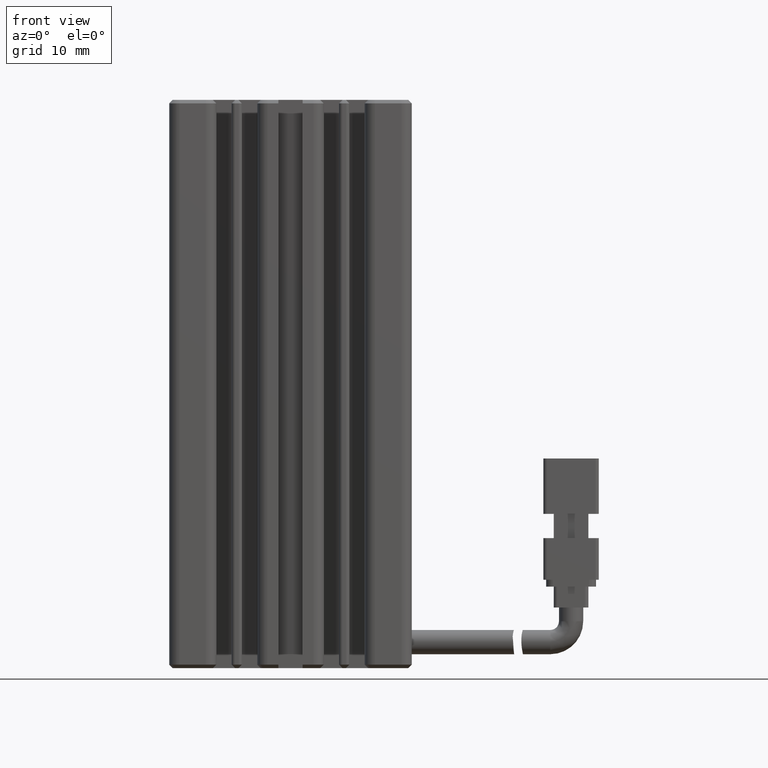
[diagram: clean part render]
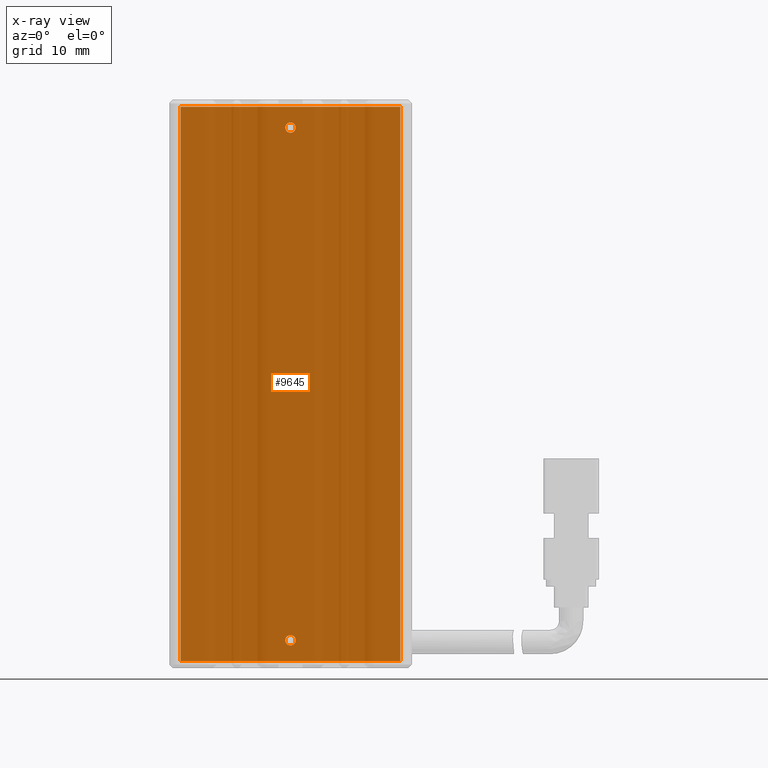
[diagram: x-ray — body ghosted, one internal face saturated and labeled with its STEP entity id]
A machine part, front view, then the same camera in x-ray: the body is ghosted and one INTERNAL B-rep face — a face not visible from any outside direction — is saturated and labeled: STEP entity #9645.
In plain terms, the highlighted planar face has unit normal (0, 1, 0).
Its self-contained STEP definition (entity closure, byte-faithful):
#1 = EDGE_CURVE ( 'NONE', #1266, #15332, #17272, .T. ) ;
#212 = EDGE_CURVE ( 'NONE', #29120, #2598, #29240, .T. ) ;
#1266 = VERTEX_POINT ( 'NONE', #30682 ) ;
#1690 = VECTOR ( 'NONE', #25660, 1000.000000000000000 ) ;
#2510 = DIRECTION ( 'NONE',  ( -0.0000000000000000000, -1.000000000000000000, -0.0000000000000000000 ) ) ;
#2598 = VERTEX_POINT ( 'NONE', #16327 ) ;
#2874 = CARTESIAN_POINT ( 'NONE',  ( 40.92537974683541800, 31.49073232304837300, -151.2500000000000300 ) ) ;
#3547 = DIRECTION ( 'NONE',  ( -0.0000000000000000000, -1.000000000000000000, -0.0000000000000000000 ) ) ;
#3583 = FACE_OUTER_BOUND ( 'NONE', #17815, .T. ) ;
#3622 = ORIENTED_EDGE ( 'NONE', *, *, #23315, .F. ) ;
#3834 = ORIENTED_EDGE ( 'NONE', *, *, #212, .F. ) ;
#4704 = DIRECTION ( 'NONE',  ( 0.0000000000000000000, 0.0000000000000000000, 1.000000000000000000 ) ) ;
#4968 = ORIENTED_EDGE ( 'NONE', *, *, #28646, .F. ) ;
#5438 = FACE_BOUND ( 'NONE', #27898, .T. ) ;
#6550 = VERTEX_POINT ( 'NONE', #19560 ) ;
#6854 = EDGE_CURVE ( 'NONE', #30297, #11134, #30434, .T. ) ;
#7009 = DIRECTION ( 'NONE',  ( -0.0000000000000000000, -1.000000000000000000, -0.0000000000000000000 ) ) ;
#7698 = VECTOR ( 'NONE', #21249, 1000.000000000000000 ) ;
#7795 = VERTEX_POINT ( 'NONE', #26455 ) ;
#8379 = VECTOR ( 'NONE', #30060, 1000.000000000000000 ) ;
#8430 = AXIS2_PLACEMENT_3D ( 'NONE', #15035, #3547, #15162 ) ;
#9621 = CIRCLE ( 'NONE', #28374, 0.7500000000000006700 ) ;
#9645 = ADVANCED_FACE ( 'NONE', ( #3583, #19609, #5438 ), #28736, .F. ) ;
#9880 = CARTESIAN_POINT ( 'NONE',  ( 56.77537974683542600, 31.49073232304837300, -155.0000000000000300 ) ) ;
#11134 = VERTEX_POINT ( 'NONE', #16051 ) ;
#11739 = AXIS2_PLACEMENT_3D ( 'NONE', #36848, #19428, #4704 ) ;
#14711 = ORIENTED_EDGE ( 'NONE', *, *, #37326, .F. ) ;
#15035 = CARTESIAN_POINT ( 'NONE',  ( 40.92537974683541100, 31.49073232304837300, -78.00000000000001400 ) ) ;
#15162 = DIRECTION ( 'NONE',  ( 0.0000000000000000000, 0.0000000000000000000, 1.000000000000000000 ) ) ;
#15332 = VERTEX_POINT ( 'NONE', #23943 ) ;
#15333 = EDGE_CURVE ( 'NONE', #15332, #30297, #18649, .T. ) ;
#15609 = EDGE_CURVE ( 'NONE', #7795, #6550, #28301, .T. ) ;
#15914 = DIRECTION ( 'NONE',  ( 0.0000000000000000000, 0.0000000000000000000, 1.000000000000000000 ) ) ;
#16051 = CARTESIAN_POINT ( 'NONE',  ( 25.07537974683541600, 31.49073232304837300, -155.0000000000000300 ) ) ;
#16057 = AXIS2_PLACEMENT_3D ( 'NONE', #31271, #37167, #23084 ) ;
#16327 = CARTESIAN_POINT ( 'NONE',  ( 40.92537974683541800, 31.49073232304837300, -152.7500000000000300 ) ) ;
#17272 = LINE ( 'NONE', #31933, #28788 ) ;
#17485 = CARTESIAN_POINT ( 'NONE',  ( 40.92537974683541800, 31.49073232304837300, -152.0000000000000300 ) ) ;
#17815 = EDGE_LOOP ( 'NONE', ( #3622, #19519, #20427, #35849 ) ) ;
#18649 = LINE ( 'NONE', #35337, #7698 ) ;
#19428 = DIRECTION ( 'NONE',  ( -0.0000000000000000000, -1.000000000000000000, -0.0000000000000000000 ) ) ;
#19500 = CARTESIAN_POINT ( 'NONE',  ( 25.07537974683540900, 31.49073232304837300, -75.00000000000001400 ) ) ;
#19519 = ORIENTED_EDGE ( 'NONE', *, *, #6854, .F. ) ;
#19560 = CARTESIAN_POINT ( 'NONE',  ( 40.92537974683541100, 31.49073232304837300, -77.25000000000001400 ) ) ;
#19609 = FACE_BOUND ( 'NONE', #21221, .T. ) ;
#20288 = DIRECTION ( 'NONE',  ( 1.000000000000000000, 0.0000000000000000000, 1.387778780781445400E-016 ) ) ;
#20427 = ORIENTED_EDGE ( 'NONE', *, *, #15333, .F. ) ;
#21221 = EDGE_LOOP ( 'NONE', ( #4968, #26768 ) ) ;
#21249 = DIRECTION ( 'NONE',  ( 1.387778780781445400E-016, -0.0000000000000000000, -1.000000000000000000 ) ) ;
#21689 = CARTESIAN_POINT ( 'NONE',  ( 56.77537974683541900, 31.49073232304837300, -155.0000000000000300 ) ) ;
#23084 = DIRECTION ( 'NONE',  ( -1.387778780781445400E-016, 0.0000000000000000000, 1.000000000000000000 ) ) ;
#23315 = EDGE_CURVE ( 'NONE', #11134, #1266, #35607, .T. ) ;
#23943 = CARTESIAN_POINT ( 'NONE',  ( 56.77537974683541200, 31.49073232304837300, -75.00000000000001400 ) ) ;
#25660 = DIRECTION ( 'NONE',  ( -1.387778780781445400E-016, 0.0000000000000000000, 1.000000000000000000 ) ) ;
#26455 = CARTESIAN_POINT ( 'NONE',  ( 40.92537974683541100, 31.49073232304837300, -78.75000000000001400 ) ) ;
#26768 = ORIENTED_EDGE ( 'NONE', *, *, #15609, .F. ) ;
#27898 = EDGE_LOOP ( 'NONE', ( #3834, #14711 ) ) ;
#28301 = CIRCLE ( 'NONE', #11739, 0.7500000000000006700 ) ;
#28374 = AXIS2_PLACEMENT_3D ( 'NONE', #17485, #2510, #32218 ) ;
#28646 = EDGE_CURVE ( 'NONE', #6550, #7795, #33993, .T. ) ;
#28736 = PLANE ( 'NONE',  #16057 ) ;
#28788 = VECTOR ( 'NONE', #20288, 1000.000000000000000 ) ;
#29120 = VERTEX_POINT ( 'NONE', #2874 ) ;
#29240 = CIRCLE ( 'NONE', #33892, 0.7500000000000006700 ) ;
#30060 = DIRECTION ( 'NONE',  ( -1.000000000000000000, -0.0000000000000000000, -1.387778780781445400E-016 ) ) ;
#30297 = VERTEX_POINT ( 'NONE', #21689 ) ;
#30434 = LINE ( 'NONE', #9880, #8379 ) ;
#30682 = CARTESIAN_POINT ( 'NONE',  ( 25.07537974683541600, 31.49073232304837300, -75.00000000000001400 ) ) ;
#31271 = CARTESIAN_POINT ( 'NONE',  ( 56.77537974683541200, 31.49073232304837300, -75.00000000000001400 ) ) ;
#31933 = CARTESIAN_POINT ( 'NONE',  ( 56.77537974683541200, 31.49073232304837300, -75.00000000000001400 ) ) ;
#32218 = DIRECTION ( 'NONE',  ( 0.0000000000000000000, 0.0000000000000000000, 1.000000000000000000 ) ) ;
#33758 = CARTESIAN_POINT ( 'NONE',  ( 40.92537974683541800, 31.49073232304837300, -152.0000000000000300 ) ) ;
#33892 = AXIS2_PLACEMENT_3D ( 'NONE', #33758, #7009, #15914 ) ;
#33993 = CIRCLE ( 'NONE', #8430, 0.7500000000000006700 ) ;
#35337 = CARTESIAN_POINT ( 'NONE',  ( 56.77537974683541200, 31.49073232304837300, -75.00000000000001400 ) ) ;
#35607 = LINE ( 'NONE', #19500, #1690 ) ;
#35849 = ORIENTED_EDGE ( 'NONE', *, *, #1, .F. ) ;
#36848 = CARTESIAN_POINT ( 'NONE',  ( 40.92537974683541100, 31.49073232304837300, -78.00000000000001400 ) ) ;
#37167 = DIRECTION ( 'NONE',  ( 0.0000000000000000000, 1.000000000000000000, 0.0000000000000000000 ) ) ;
#37326 = EDGE_CURVE ( 'NONE', #2598, #29120, #9621, .T. ) ;